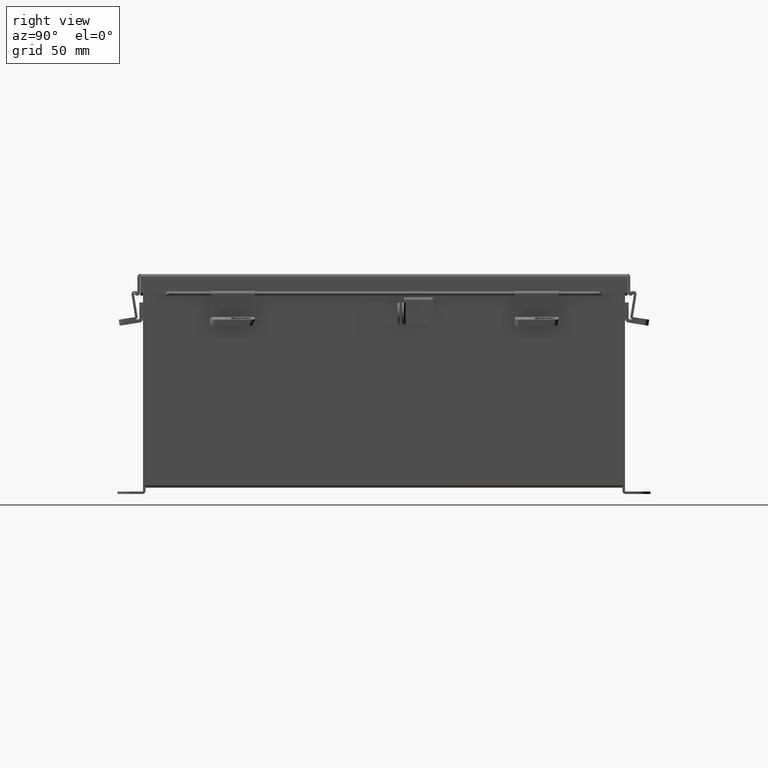
[diagram: clean part render]
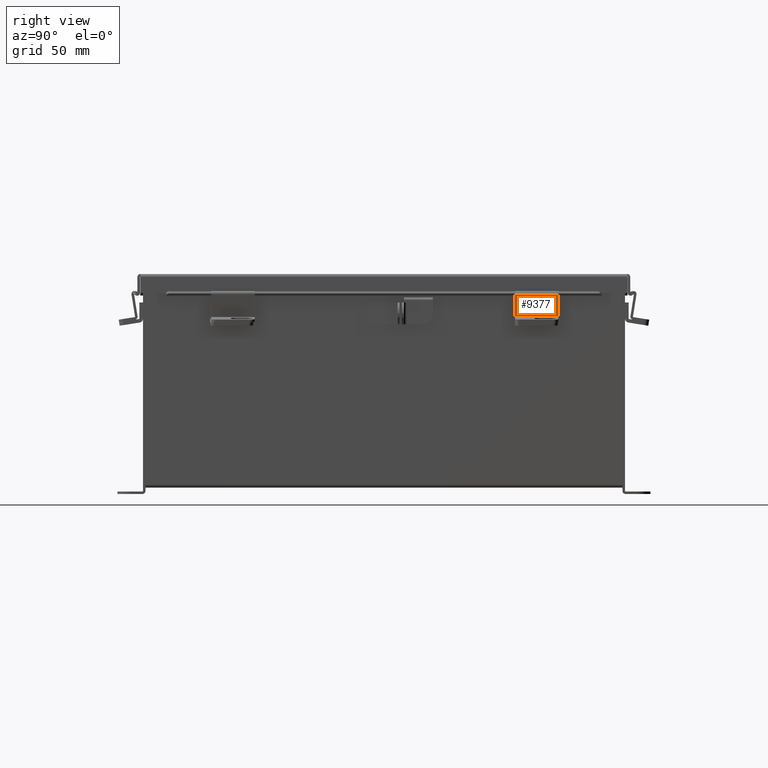
[diagram: same view with one face highlighted and labeled with its STEP entity id]
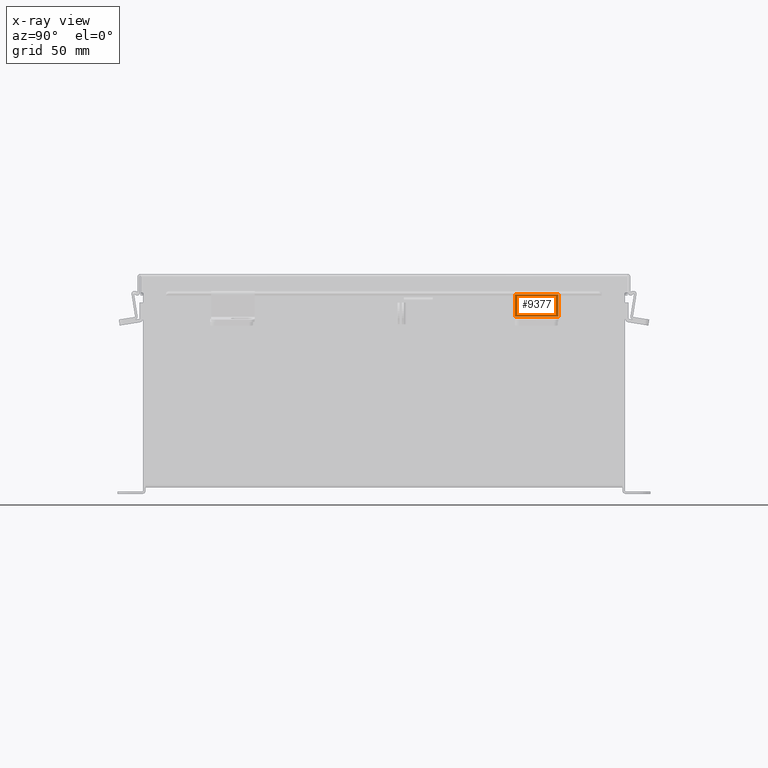
[diagram: x-ray of the same camera — body ghosted, the highlighted face saturated]
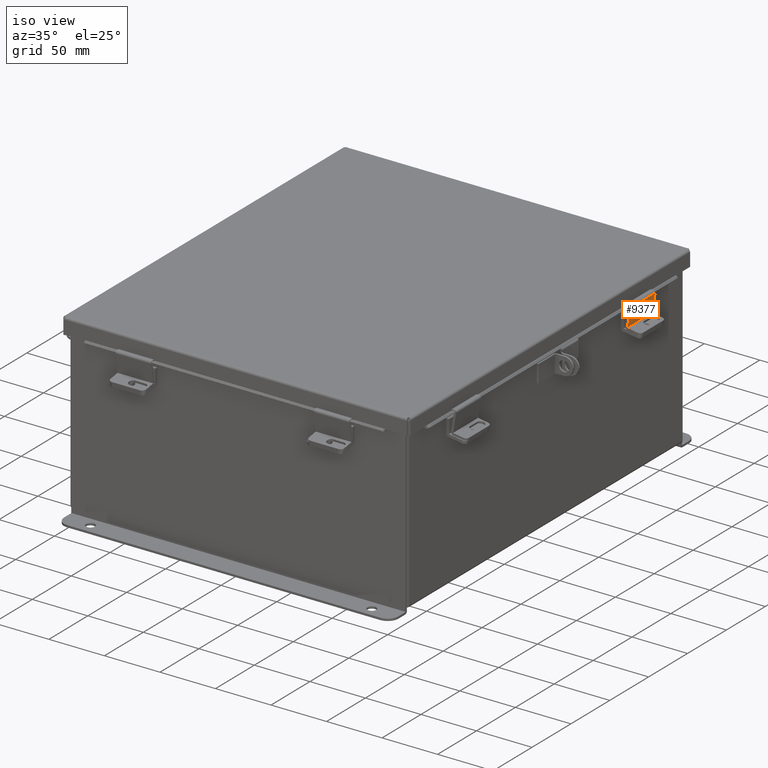
[diagram: same view with one face highlighted and labeled with its STEP entity id]
A machine part, right view. The second image highlights one B-rep face of the part: STEP entity #9377.
The next image is the same camera in x-ray: the body ghosted, the highlighted face saturated — about 0% of this face is hidden behind the body in this view.
A second angle (iso view) of the same face is appended — the face is thin or edge-on in the first view.
In plain terms, the highlighted planar face has unit normal (-0.9877, 0, 0.1564).
Its self-contained STEP definition (entity closure, byte-faithful):
#325 = DIRECTION ( 'NONE',  ( -0.0000000000000000000, -1.000000000000000000, -0.0000000000000000000 ) ) ;
#801 = VECTOR ( 'NONE', #1395, 39.37007874015748100 ) ;
#1395 = DIRECTION ( 'NONE',  ( 0.0000000000000000000, 1.000000000000000000, 0.0000000000000000000 ) ) ;
#1715 = LINE ( 'NONE', #11459, #801 ) ;
#1724 = ORIENTED_EDGE ( 'NONE', *, *, #18228, .F. ) ;
#1953 = VERTEX_POINT ( 'NONE', #12322 ) ;
#2053 = AXIS2_PLACEMENT_3D ( 'NONE', #12365, #13769, #5229 ) ;
#2108 = VERTEX_POINT ( 'NONE', #18412 ) ;
#2315 = PLANE ( 'NONE',  #2053 ) ;
#2893 = VERTEX_POINT ( 'NONE', #15449 ) ;
#3141 = VECTOR ( 'NONE', #7582, 39.37007874015748100 ) ;
#3587 = LINE ( 'NONE', #14767, #3141 ) ;
#4704 = DIRECTION ( 'NONE',  ( -1.000000000000000000, -0.0000000000000000000, -0.0000000000000000000 ) ) ;
#4917 = ORIENTED_EDGE ( 'NONE', *, *, #13080, .T. ) ;
#5229 = DIRECTION ( 'NONE',  ( -1.000000000000000000, 0.0000000000000000000, -0.0000000000000000000 ) ) ;
#5928 = EDGE_CURVE ( 'NONE', #2108, #1953, #13727, .T. ) ;
#7582 = DIRECTION ( 'NONE',  ( -1.000000000000000000, 0.0000000000000000000, 0.0000000000000000000 ) ) ;
#8917 = EDGE_LOOP ( 'NONE', ( #4917, #9616, #1724, #18511 ) ) ;
#9111 = VECTOR ( 'NONE', #4704, 39.37007874015748100 ) ;
#9377 = ADVANCED_FACE ( 'NONE', ( #18110 ), #2315, .F. ) ;
#9616 = ORIENTED_EDGE ( 'NONE', *, *, #5928, .T. ) ;
#10911 = CARTESIAN_POINT ( 'NONE',  ( 0.6325000000000000600, -0.3344999999999998500, -3.734948428837859800E-017 ) ) ;
#11459 = CARTESIAN_POINT ( 'NONE',  ( 0.6325000000000000600, -0.4174999999999998700, 0.0000000000000000000 ) ) ;
#12322 = CARTESIAN_POINT ( 'NONE',  ( -0.6325000000000000600, -0.3344999999999998500, -3.734948428837859800E-017 ) ) ;
#12365 = CARTESIAN_POINT ( 'NONE',  ( 0.6325000000000000600, 0.4175000000000001500, 0.0000000000000000000 ) ) ;
#12925 = LINE ( 'NONE', #13243, #9111 ) ;
#12939 = EDGE_CURVE ( 'NONE', #14000, #2893, #1715, .T. ) ;
#13080 = EDGE_CURVE ( 'NONE', #2893, #2108, #12925, .T. ) ;
#13243 = CARTESIAN_POINT ( 'NONE',  ( 0.6325000000000000600, 0.3243453803252444000, -1.024442997624098700E-016 ) ) ;
#13727 = LINE ( 'NONE', #14692, #17133 ) ;
#13769 = DIRECTION ( 'NONE',  ( 0.0000000000000000000, 0.0000000000000000000, -1.000000000000000000 ) ) ;
#14000 = VERTEX_POINT ( 'NONE', #10911 ) ;
#14692 = CARTESIAN_POINT ( 'NONE',  ( -0.6325000000000000600, -0.4174999999999998700, 0.0000000000000000000 ) ) ;
#14767 = CARTESIAN_POINT ( 'NONE',  ( 0.6325000000000000600, -0.3344999999999998500, -3.734948428837859800E-017 ) ) ;
#15449 = CARTESIAN_POINT ( 'NONE',  ( 0.6324999999999998400, 0.3243453803252444000, -1.024442997624098700E-016 ) ) ;
#17133 = VECTOR ( 'NONE', #325, 39.37007874015748100 ) ;
#18110 = FACE_OUTER_BOUND ( 'NONE', #8917, .T. ) ;
#18228 = EDGE_CURVE ( 'NONE', #14000, #1953, #3587, .T. ) ;
#18412 = CARTESIAN_POINT ( 'NONE',  ( -0.6325000000000000600, 0.3243453803252444000, 0.0000000000000000000 ) ) ;
#18511 = ORIENTED_EDGE ( 'NONE', *, *, #12939, .T. ) ;